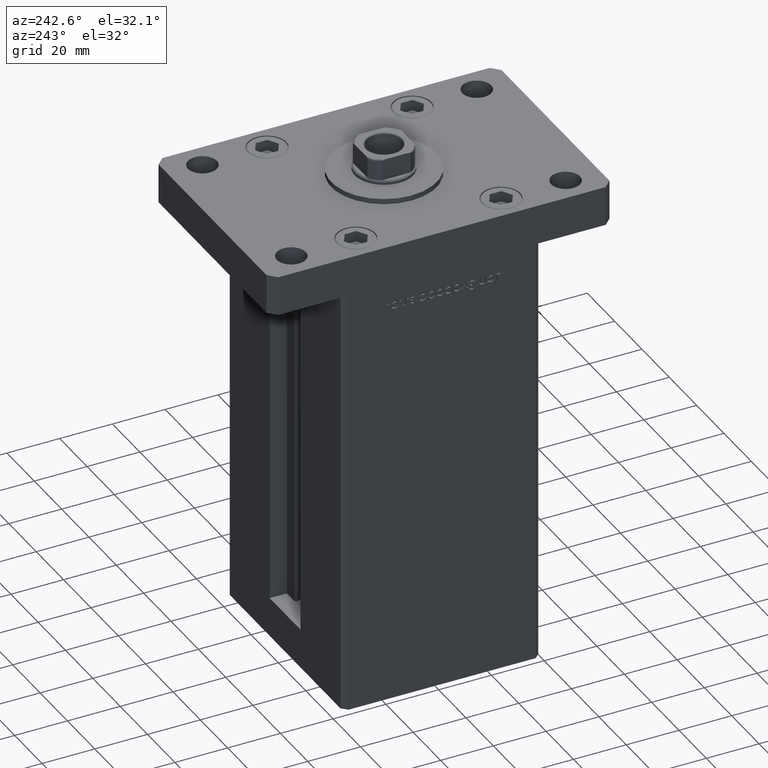
[diagram: clean part render]
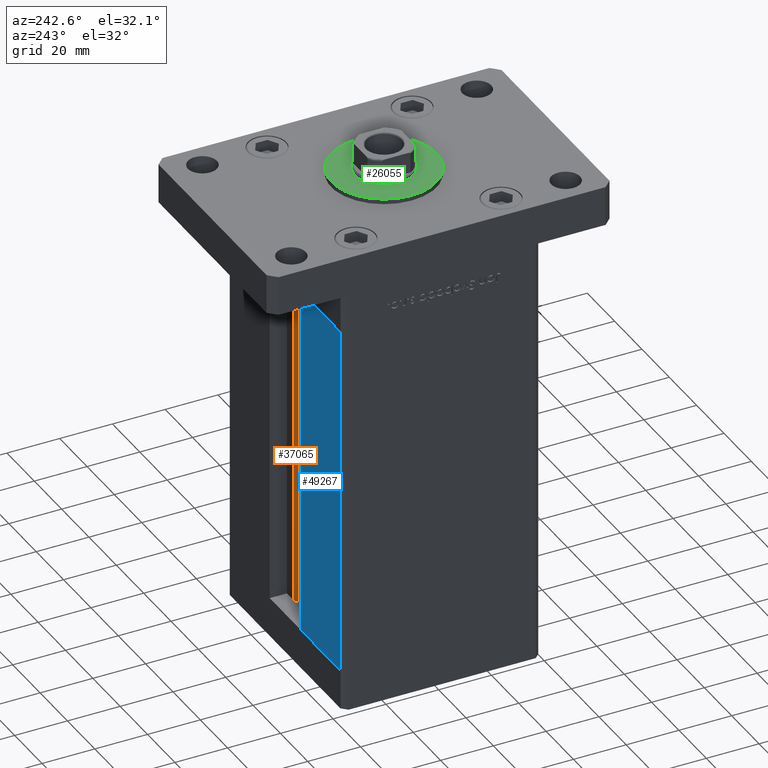
[diagram: same view with three faces highlighted in distinct colors, each labeled with its STEP entity id]
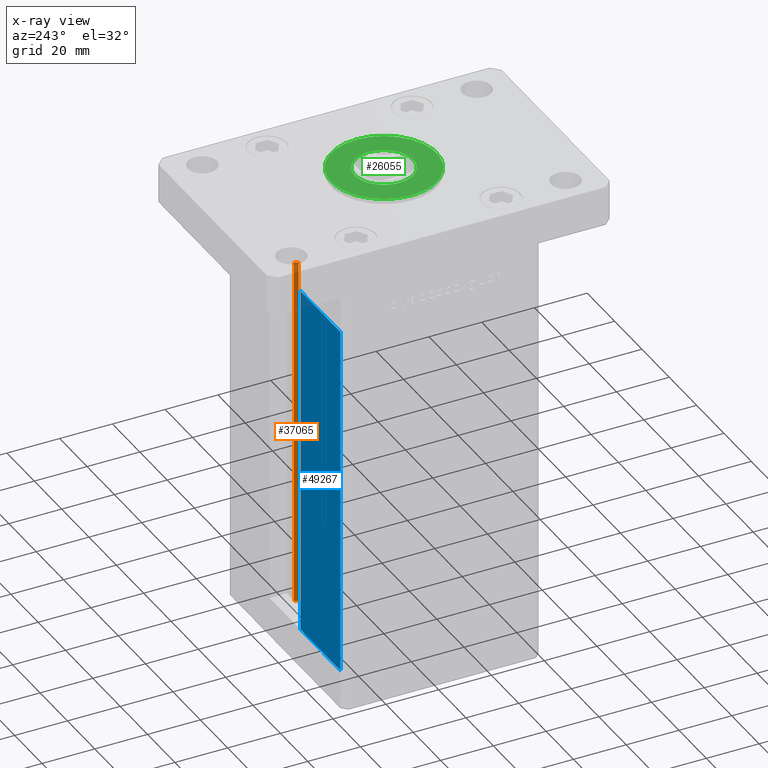
[diagram: x-ray of the same camera — body ghosted, the three highlighted faces saturated]
A machine part, auxiliary view with three faces highlighted in distinct colors.
The next image is the same camera in x-ray (body ghosted, the three faces saturated) — at least one of them is partly hidden behind the body in this view.
Their STEP definitions:

[orange] entity #37065 — the highlighted cylindrical surface (edge-blend (fillet) strip) has radius 0.9333 mm, axis along (0, 0, 1).
#2218 = CYLINDRICAL_SURFACE ( 'NONE', #50569, 0.9333333333340015914 ) ;
#3127 = CIRCLE ( 'NONE', #21322, 0.9333333333340015914 ) ;
#3200 = CARTESIAN_POINT ( 'NONE',  ( 6.183333333333999704, 30.99999999999999289, 0.000000000000000000 ) ) ;
#5343 = EDGE_CURVE ( 'NONE', #53582, #42926, #15578, .T. ) ;
#8172 = EDGE_CURVE ( 'NONE', #23118, #8394, #50561, .T. ) ;
#8394 = VERTEX_POINT ( 'NONE', #29079 ) ;
#13409 = CARTESIAN_POINT ( 'NONE',  ( 6.183333333333999704, 30.99999999999999289, 0.000000000000000000 ) ) ;
#15578 = LINE ( 'NONE', #32110, #46228 ) ;
#18470 = CARTESIAN_POINT ( 'NONE',  ( 6.183333333333999704, 30.06666666666599141, 0.000000000000000000 ) ) ;
#21322 = AXIS2_PLACEMENT_3D ( 'NONE', #51841, #52891, #28209 ) ;
#23083 = DIRECTION ( 'NONE',  ( 1.000000000000000000, 0.000000000000000000, 0.000000000000000000 ) ) ;
#23118 = VERTEX_POINT ( 'NONE', #3200 ) ;
#24457 = AXIS2_PLACEMENT_3D ( 'NONE', #18470, #51833, #27401 ) ;
#27401 = DIRECTION ( 'NONE',  ( 1.000000000000000000, 0.000000000000000000, 0.000000000000000000 ) ) ;
#28209 = DIRECTION ( 'NONE',  ( 1.000000000000000000, 0.000000000000000000, 0.000000000000000000 ) ) ;
#29079 = CARTESIAN_POINT ( 'NONE',  ( 6.183333333333999704, 30.99999999999999289, 134.5000000000000000 ) ) ;
#29939 = DIRECTION ( 'NONE',  ( -0.000000000000000000, -0.000000000000000000, 1.000000000000000000 ) ) ;
#31220 = FACE_OUTER_BOUND ( 'NONE', #45454, .T. ) ;
#31448 = VECTOR ( 'NONE', #29939, 1000.000000000000000 ) ;
#32110 = CARTESIAN_POINT ( 'NONE',  ( 5.375042956467943611, 29.59999999999899245, 0.000000000000000000 ) ) ;
#35130 = DIRECTION ( 'NONE',  ( -0.000000000000000000, -0.000000000000000000, 1.000000000000000000 ) ) ;
#35291 = CARTESIAN_POINT ( 'NONE',  ( 6.183333333333999704, 30.06666666666599141, 0.000000000000000000 ) ) ;
#36067 = ORIENTED_EDGE ( 'NONE', *, *, #5343, .T. ) ;
#36488 = CARTESIAN_POINT ( 'NONE',  ( 5.375042956467943611, 29.59999999999899245, 0.000000000000000000 ) ) ;
#37065 = ADVANCED_FACE ( 'NONE', ( #31220 ), #2218, .T. ) ;
#38221 = ORIENTED_EDGE ( 'NONE', *, *, #45411, .T. ) ;
#39980 = CARTESIAN_POINT ( 'NONE',  ( 5.375042956467944499, 29.59999999999899245, 134.5000000000000000 ) ) ;
#42926 = VERTEX_POINT ( 'NONE', #39980 ) ;
#45411 = EDGE_CURVE ( 'NONE', #42926, #8394, #3127, .T. ) ;
#45454 = EDGE_LOOP ( 'NONE', ( #49213, #51810, #36067, #38221 ) ) ;
#46228 = VECTOR ( 'NONE', #35130, 1000.000000000000000 ) ;
#47761 = DIRECTION ( 'NONE',  ( -0.000000000000000000, -0.000000000000000000, 1.000000000000000000 ) ) ;
#49213 = ORIENTED_EDGE ( 'NONE', *, *, #8172, .F. ) ;
#50521 = EDGE_CURVE ( 'NONE', #53582, #23118, #51342, .T. ) ;
#50561 = LINE ( 'NONE', #13409, #31448 ) ;
#50569 = AXIS2_PLACEMENT_3D ( 'NONE', #35291, #47761, #23083 ) ;
#51342 = CIRCLE ( 'NONE', #24457, 0.9333333333340015914 ) ;
#51810 = ORIENTED_EDGE ( 'NONE', *, *, #50521, .F. ) ;
#51833 = DIRECTION ( 'NONE',  ( -0.000000000000000000, -0.000000000000000000, -1.000000000000000000 ) ) ;
#51841 = CARTESIAN_POINT ( 'NONE',  ( 6.183333333333999704, 30.06666666666599141, 134.5000000000000000 ) ) ;
#52891 = DIRECTION ( 'NONE',  ( 0.000000000000000000, 0.000000000000000000, -1.000000000000000000 ) ) ;
#53582 = VERTEX_POINT ( 'NONE', #36488 ) ;

[blue] entity #49267 — the highlighted planar face has unit normal (-0, -1, 0).
#1580 = CARTESIAN_POINT ( 'NONE',  ( -11.25000000000000000, 37.50000000000000000, 134.5000000000000000 ) ) ;
#1984 = DIRECTION ( 'NONE',  ( -2.372271420139223824E-16, -1.000000000000000000, 0.000000000000000000 ) ) ;
#5360 = EDGE_LOOP ( 'NONE', ( #36036, #49590, #7526, #22702 ) ) ;
#7526 = ORIENTED_EDGE ( 'NONE', *, *, #8024, .T. ) ;
#8024 = EDGE_CURVE ( 'NONE', #45046, #21616, #11000, .T. ) ;
#11000 = LINE ( 'NONE', #32675, #52240 ) ;
#12365 = VECTOR ( 'NONE', #41298, 1000.000000000000000 ) ;
#13267 = DIRECTION ( 'NONE',  ( 1.000000000000000000, 0.000000000000000000, 0.000000000000000000 ) ) ;
#13663 = AXIS2_PLACEMENT_3D ( 'NONE', #39408, #1984, #52134 ) ;
#13985 = EDGE_CURVE ( 'NONE', #47938, #51273, #16809, .T. ) ;
#14309 = CARTESIAN_POINT ( 'NONE',  ( -40.50000000000000000, 37.50000000000000711, 134.5000000000000000 ) ) ;
#14739 = CARTESIAN_POINT ( 'NONE',  ( -11.25000000000000000, 37.50000000000000000, 0.000000000000000000 ) ) ;
#16809 = LINE ( 'NONE', #1580, #31610 ) ;
#18060 = CARTESIAN_POINT ( 'NONE',  ( -40.50000000000000000, 37.50000000000000711, 0.000000000000000000 ) ) ;
#21616 = VERTEX_POINT ( 'NONE', #18060 ) ;
#22702 = ORIENTED_EDGE ( 'NONE', *, *, #41126, .F. ) ;
#22856 = PLANE ( 'NONE',  #13663 ) ;
#29085 = LINE ( 'NONE', #49710, #12365 ) ;
#30110 = CARTESIAN_POINT ( 'NONE',  ( -40.50000000000000000, 37.50000000000000711, 134.5000000000000000 ) ) ;
#30840 = DIRECTION ( 'NONE',  ( -0.000000000000000000, -0.000000000000000000, -1.000000000000000000 ) ) ;
#31610 = VECTOR ( 'NONE', #13267, 1000.000000000000000 ) ;
#32675 = CARTESIAN_POINT ( 'NONE',  ( -11.25000000000000000, 37.50000000000000000, 0.000000000000000000 ) ) ;
#36036 = ORIENTED_EDGE ( 'NONE', *, *, #13985, .T. ) ;
#36197 = DIRECTION ( 'NONE',  ( -1.000000000000000000, 2.372271420139223331E-16, 0.000000000000000000 ) ) ;
#39408 = CARTESIAN_POINT ( 'NONE',  ( -11.25000000000000000, 37.50000000000000000, 134.5000000000000000 ) ) ;
#41126 = EDGE_CURVE ( 'NONE', #47938, #21616, #46852, .T. ) ;
#41298 = DIRECTION ( 'NONE',  ( -0.000000000000000000, -0.000000000000000000, 1.000000000000000000 ) ) ;
#44594 = VECTOR ( 'NONE', #30840, 1000.000000000000000 ) ;
#45046 = VERTEX_POINT ( 'NONE', #14739 ) ;
#46852 = LINE ( 'NONE', #14309, #44594 ) ;
#47546 = FACE_OUTER_BOUND ( 'NONE', #5360, .T. ) ;
#47938 = VERTEX_POINT ( 'NONE', #30110 ) ;
#49267 = ADVANCED_FACE ( 'NONE', ( #47546 ), #22856, .F. ) ;
#49590 = ORIENTED_EDGE ( 'NONE', *, *, #50262, .F. ) ;
#49710 = CARTESIAN_POINT ( 'NONE',  ( -11.25000000000000000, 37.50000000000000000, 0.000000000000000000 ) ) ;
#50262 = EDGE_CURVE ( 'NONE', #45046, #51273, #29085, .T. ) ;
#51273 = VERTEX_POINT ( 'NONE', #52752 ) ;
#52134 = DIRECTION ( 'NONE',  ( 1.000000000000000000, -2.372271420139223824E-16, 0.000000000000000000 ) ) ;
#52240 = VECTOR ( 'NONE', #36197, 1000.000000000000000 ) ;
#52752 = CARTESIAN_POINT ( 'NONE',  ( -11.25000000000000000, 37.50000000000000000, 134.5000000000000000 ) ) ;

[green] entity #26055 — the highlighted planar face has unit normal (0, 0, 1).
#1900 = PLANE ( 'NONE',  #17421 ) ;
#2679 = EDGE_LOOP ( 'NONE', ( #41526, #51111 ) ) ;
#3635 = DIRECTION ( 'NONE',  ( 1.000000000000000000, 0.000000000000000000, 0.000000000000000000 ) ) ;
#5479 = EDGE_CURVE ( 'NONE', #39049, #39929, #27189, .T. ) ;
#8791 = DIRECTION ( 'NONE',  ( 1.000000000000000000, 0.000000000000000000, 0.000000000000000000 ) ) ;
#8847 = CARTESIAN_POINT ( 'NONE',  ( -20.00000000000000000, 0.000000000000000000, 17.00000000000000000 ) ) ;
#9511 = FACE_BOUND ( 'NONE', #29552, .T. ) ;
#11028 = VERTEX_POINT ( 'NONE', #12846 ) ;
#12444 = AXIS2_PLACEMENT_3D ( 'NONE', #20982, #37527, #8791 ) ;
#12846 = CARTESIAN_POINT ( 'NONE',  ( -11.00000000000000000, 1.347111479062088405E-15, 17.00000000000000000 ) ) ;
#13399 = CIRCLE ( 'NONE', #47992, 11.00000000000000000 ) ;
#13425 = CARTESIAN_POINT ( 'NONE',  ( 11.00000000000000000, 0.000000000000000000, 17.00000000000000000 ) ) ;
#13590 = FACE_OUTER_BOUND ( 'NONE', #2679, .T. ) ;
#16294 = VERTEX_POINT ( 'NONE', #13425 ) ;
#16806 = AXIS2_PLACEMENT_3D ( 'NONE', #33476, #24799, #3635 ) ;
#17421 = AXIS2_PLACEMENT_3D ( 'NONE', #38794, #17913, #30120 ) ;
#17913 = DIRECTION ( 'NONE',  ( 0.000000000000000000, 0.000000000000000000, 1.000000000000000000 ) ) ;
#20982 = CARTESIAN_POINT ( 'NONE',  ( 0.000000000000000000, 0.000000000000000000, 17.00000000000000000 ) ) ;
#21293 = CARTESIAN_POINT ( 'NONE',  ( 0.000000000000000000, 0.000000000000000000, 17.00000000000000000 ) ) ;
#22916 = ORIENTED_EDGE ( 'NONE', *, *, #40319, .F. ) ;
#24799 = DIRECTION ( 'NONE',  ( 0.000000000000000000, 0.000000000000000000, 1.000000000000000000 ) ) ;
#26055 = ADVANCED_FACE ( 'NONE', ( #9511, #13590 ), #1900, .T. ) ;
#27159 = CIRCLE ( 'NONE', #12444, 11.00000000000000000 ) ;
#27189 = CIRCLE ( 'NONE', #16806, 20.00000000000000000 ) ;
#29552 = EDGE_LOOP ( 'NONE', ( #37028, #22916 ) ) ;
#30120 = DIRECTION ( 'NONE',  ( 1.000000000000000000, 0.000000000000000000, -0.000000000000000000 ) ) ;
#33470 = EDGE_CURVE ( 'NONE', #16294, #11028, #27159, .T. ) ;
#33476 = CARTESIAN_POINT ( 'NONE',  ( 0.000000000000000000, 0.000000000000000000, 17.00000000000000000 ) ) ;
#33770 = DIRECTION ( 'NONE',  ( 1.000000000000000000, 0.000000000000000000, 0.000000000000000000 ) ) ;
#35253 = CIRCLE ( 'NONE', #46537, 20.00000000000000000 ) ;
#35358 = CARTESIAN_POINT ( 'NONE',  ( 0.000000000000000000, 0.000000000000000000, 17.00000000000000000 ) ) ;
#37028 = ORIENTED_EDGE ( 'NONE', *, *, #33470, .F. ) ;
#37527 = DIRECTION ( 'NONE',  ( 0.000000000000000000, 0.000000000000000000, 1.000000000000000000 ) ) ;
#38794 = CARTESIAN_POINT ( 'NONE',  ( 0.000000000000000000, 0.000000000000000000, 17.00000000000000000 ) ) ;
#39049 = VERTEX_POINT ( 'NONE', #8847 ) ;
#39929 = VERTEX_POINT ( 'NONE', #50286 ) ;
#39951 = DIRECTION ( 'NONE',  ( 0.000000000000000000, 0.000000000000000000, 1.000000000000000000 ) ) ;
#40319 = EDGE_CURVE ( 'NONE', #11028, #16294, #13399, .T. ) ;
#41526 = ORIENTED_EDGE ( 'NONE', *, *, #5479, .T. ) ;
#42703 = DIRECTION ( 'NONE',  ( 0.000000000000000000, 0.000000000000000000, 1.000000000000000000 ) ) ;
#46537 = AXIS2_PLACEMENT_3D ( 'NONE', #21293, #42703, #33770 ) ;
#47303 = EDGE_CURVE ( 'NONE', #39929, #39049, #35253, .T. ) ;
#47321 = DIRECTION ( 'NONE',  ( 1.000000000000000000, 0.000000000000000000, 0.000000000000000000 ) ) ;
#47992 = AXIS2_PLACEMENT_3D ( 'NONE', #35358, #39951, #47321 ) ;
#50286 = CARTESIAN_POINT ( 'NONE',  ( 20.00000000000000000, 2.449293598294706513E-15, 17.00000000000000000 ) ) ;
#51111 = ORIENTED_EDGE ( 'NONE', *, *, #47303, .T. ) ;